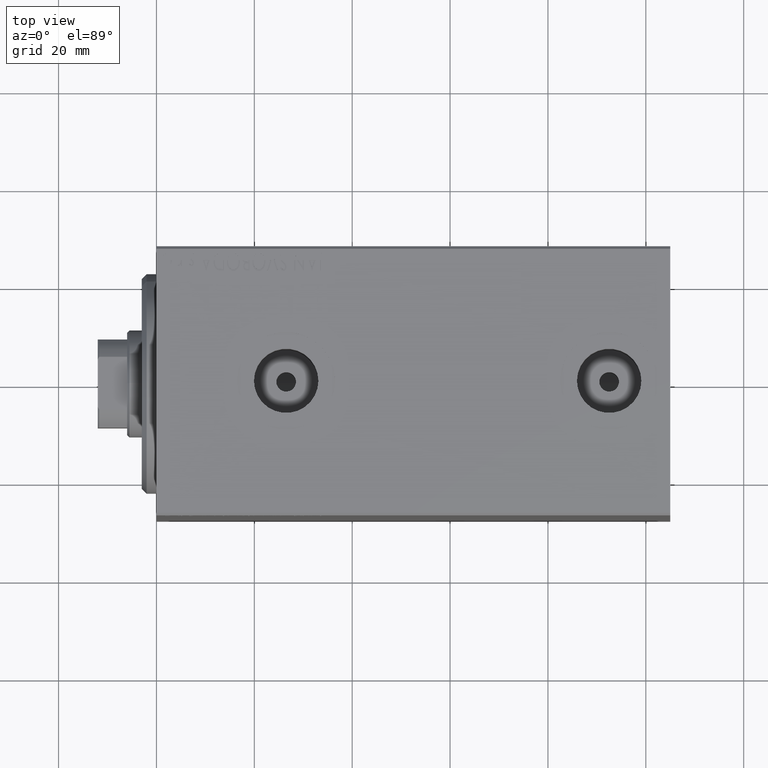
[diagram: clean part render]
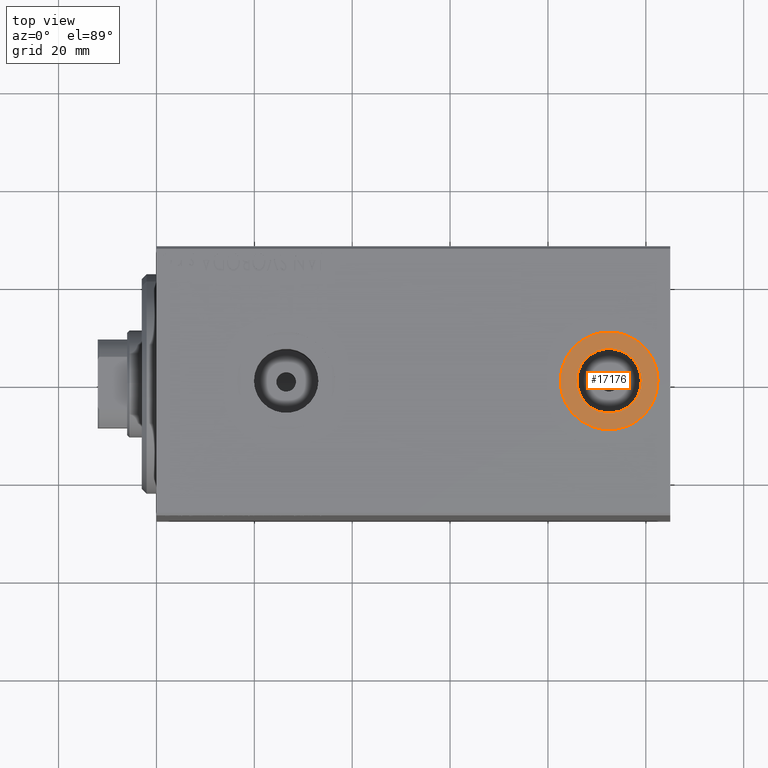
[diagram: same view with one face highlighted and labeled with its STEP entity id]
A machine part, top view. The second image highlights one B-rep face of the part: STEP entity #17176.
In plain terms, the highlighted planar face has unit normal (0, 0, 1).
Its self-contained STEP definition (entity closure, byte-faithful):
#1362 = DIRECTION ( 'NONE',  ( 0.000000000000000000, 0.000000000000000000, 1.000000000000000000 ) ) ;
#2792 = DIRECTION ( 'NONE',  ( 1.000000000000000000, 0.000000000000000000, 0.000000000000000000 ) ) ;
#4414 = CARTESIAN_POINT ( 'NONE',  ( 92.50000000000000000, -4.731064025391293223E-15, 37.40000000000000568 ) ) ;
#5224 = EDGE_CURVE ( 'NONE', #9385, #41644, #43252, .T. ) ;
#6005 = AXIS2_PLACEMENT_3D ( 'NONE', #4414, #8180, #14653 ) ;
#6086 = EDGE_CURVE ( 'NONE', #32107, #35506, #28391, .T. ) ;
#6787 = AXIS2_PLACEMENT_3D ( 'NONE', #22476, #16236, #28933 ) ;
#7738 = CARTESIAN_POINT ( 'NONE',  ( 99.07999999999999829, -4.731064025391293223E-15, 37.40000000000000568 ) ) ;
#8180 = DIRECTION ( 'NONE',  ( 0.000000000000000000, 0.000000000000000000, 1.000000000000000000 ) ) ;
#8902 = CIRCLE ( 'NONE', #6787, 9.999999999999994671 ) ;
#9124 = CARTESIAN_POINT ( 'NONE',  ( 85.92000000000000171, -3.925246431552334970E-15, 37.40000000000000568 ) ) ;
#9385 = VERTEX_POINT ( 'NONE', #33352 ) ;
#14653 = DIRECTION ( 'NONE',  ( 1.000000000000000000, 0.000000000000000000, -0.000000000000000000 ) ) ;
#14951 = DIRECTION ( 'NONE',  ( 1.000000000000000000, 0.000000000000000000, 0.000000000000000000 ) ) ;
#14985 = CARTESIAN_POINT ( 'NONE',  ( 92.50000000000000000, -4.731064025391293223E-15, 37.40000000000000568 ) ) ;
#15338 = EDGE_CURVE ( 'NONE', #35506, #32107, #37071, .T. ) ;
#16236 = DIRECTION ( 'NONE',  ( 0.000000000000000000, 0.000000000000000000, 1.000000000000000000 ) ) ;
#17011 = AXIS2_PLACEMENT_3D ( 'NONE', #36810, #32843, #2792 ) ;
#17176 = ADVANCED_FACE ( 'NONE', ( #24909, #28250 ), #28463, .T. ) ;
#18666 = EDGE_CURVE ( 'NONE', #41644, #9385, #8902, .T. ) ;
#22476 = CARTESIAN_POINT ( 'NONE',  ( 92.50000000000000000, -4.731064025391293223E-15, 37.40000000000000568 ) ) ;
#24909 = FACE_BOUND ( 'NONE', #32837, .T. ) ;
#25141 = ORIENTED_EDGE ( 'NONE', *, *, #5224, .T. ) ;
#26628 = CARTESIAN_POINT ( 'NONE',  ( 102.5000000000000000, -4.731064025391293223E-15, 37.40000000000000568 ) ) ;
#28250 = FACE_OUTER_BOUND ( 'NONE', #39374, .T. ) ;
#28391 = CIRCLE ( 'NONE', #34097, 6.580000000000002736 ) ;
#28463 = PLANE ( 'NONE',  #6005 ) ;
#28933 = DIRECTION ( 'NONE',  ( 1.000000000000000000, 0.000000000000000000, 0.000000000000000000 ) ) ;
#29254 = ORIENTED_EDGE ( 'NONE', *, *, #15338, .F. ) ;
#31857 = CARTESIAN_POINT ( 'NONE',  ( 92.50000000000000000, -4.731064025391293223E-15, 37.40000000000000568 ) ) ;
#32107 = VERTEX_POINT ( 'NONE', #9124 ) ;
#32769 = DIRECTION ( 'NONE',  ( 1.000000000000000000, 0.000000000000000000, 0.000000000000000000 ) ) ;
#32837 = EDGE_LOOP ( 'NONE', ( #29254, #37653 ) ) ;
#32843 = DIRECTION ( 'NONE',  ( 0.000000000000000000, 0.000000000000000000, 1.000000000000000000 ) ) ;
#33352 = CARTESIAN_POINT ( 'NONE',  ( 82.50000000000000000, -3.506417226243940558E-15, 37.40000000000000568 ) ) ;
#34097 = AXIS2_PLACEMENT_3D ( 'NONE', #31857, #1362, #14951 ) ;
#35428 = DIRECTION ( 'NONE',  ( 0.000000000000000000, 0.000000000000000000, 1.000000000000000000 ) ) ;
#35506 = VERTEX_POINT ( 'NONE', #7738 ) ;
#36810 = CARTESIAN_POINT ( 'NONE',  ( 92.50000000000000000, -4.731064025391293223E-15, 37.40000000000000568 ) ) ;
#37071 = CIRCLE ( 'NONE', #42750, 6.580000000000002736 ) ;
#37653 = ORIENTED_EDGE ( 'NONE', *, *, #6086, .F. ) ;
#39374 = EDGE_LOOP ( 'NONE', ( #43423, #25141 ) ) ;
#41644 = VERTEX_POINT ( 'NONE', #26628 ) ;
#42750 = AXIS2_PLACEMENT_3D ( 'NONE', #14985, #35428, #32769 ) ;
#43252 = CIRCLE ( 'NONE', #17011, 9.999999999999994671 ) ;
#43423 = ORIENTED_EDGE ( 'NONE', *, *, #18666, .T. ) ;